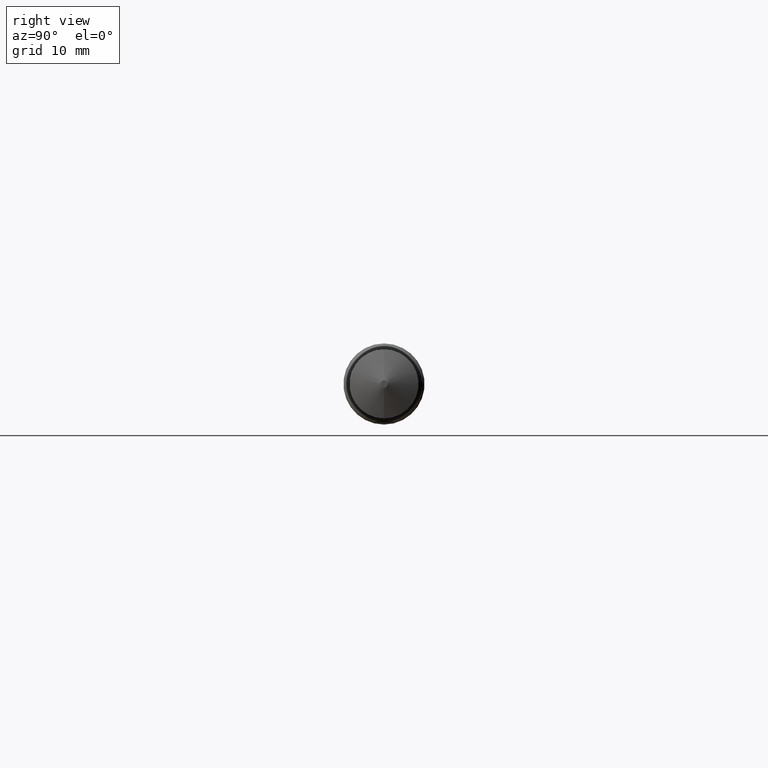
[diagram: clean part render]
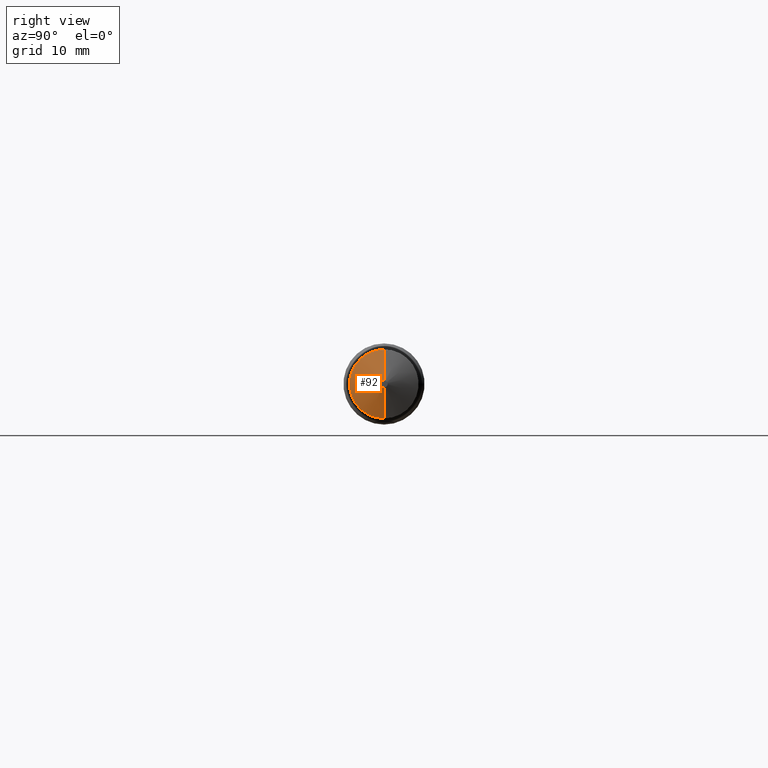
[diagram: same view with one face highlighted and labeled with its STEP entity id]
A machine part, right view. The second image highlights one B-rep face of the part: STEP entity #92.
In plain terms, the highlighted conical surface has half-angle 70 deg.
Its self-contained STEP definition (entity closure, byte-faithful):
#12 = CARTESIAN_POINT ( 'NONE',  ( 3.449341472734085645, 0.000000000000000000, 0.000000000000000000 ) ) ;
#18 = DIRECTION ( 'NONE',  ( 1.000000000000000000, -0.000000000000000000, -0.000000000000000000 ) ) ;
#19 = ORIENTED_EDGE ( 'NONE', *, *, #316, .T. ) ;
#24 = CARTESIAN_POINT ( 'NONE',  ( 3.503937007874015741, 0.000000000000000000, 0.01750000000000043535 ) ) ;
#30 = VERTEX_POINT ( 'NONE', #345 ) ;
#53 = VECTOR ( 'NONE', #62, 39.37007874015748854 ) ;
#62 = DIRECTION ( 'NONE',  ( -0.3420201433256661039, 0.000000000000000000, 0.9396926207859094271 ) ) ;
#68 = DIRECTION ( 'NONE',  ( 0.000000000000000000, 0.000000000000000000, -1.000000000000000000 ) ) ;
#82 = ORIENTED_EDGE ( 'NONE', *, *, #113, .F. ) ;
#87 = CARTESIAN_POINT ( 'NONE',  ( 3.503937007874015741, 1.132798289211307374E-17, -0.01750000000000043535 ) ) ;
#92 = ADVANCED_FACE ( 'NONE', ( #93 ), #376, .T. ) ;
#93 = FACE_OUTER_BOUND ( 'NONE', #246, .T. ) ;
#101 = CARTESIAN_POINT ( 'NONE',  ( 3.449341472734085645, 2.051283388571821633E-17, -0.1675000000000003986 ) ) ;
#107 = CIRCLE ( 'NONE', #377, 0.1675000000000004541 ) ;
#113 = EDGE_CURVE ( 'NONE', #378, #259, #291, .T. ) ;
#137 = DIRECTION ( 'NONE',  ( 0.000000000000000000, 0.000000000000000000, -1.000000000000000000 ) ) ;
#144 = CARTESIAN_POINT ( 'NONE',  ( 3.503937007874015741, 0.000000000000000000, 0.01750000000000043535 ) ) ;
#150 = DIRECTION ( 'NONE',  ( -0.3420201433256661039, 1.150791560227851502E-16, -0.9396926207859094271 ) ) ;
#173 = DIRECTION ( 'NONE',  ( 0.000000000000000000, 0.000000000000000000, 1.000000000000000000 ) ) ;
#200 = CIRCLE ( 'NONE', #338, 0.01750000000000043535 ) ;
#203 = CARTESIAN_POINT ( 'NONE',  ( 3.503937007874015741, 0.000000000000000000, 0.000000000000000000 ) ) ;
#230 = DIRECTION ( 'NONE',  ( -1.000000000000000000, 0.000000000000000000, 0.000000000000000000 ) ) ;
#232 = VECTOR ( 'NONE', #150, 39.37007874015748854 ) ;
#236 = CARTESIAN_POINT ( 'NONE',  ( 3.503937007874015741, 0.000000000000000000, 0.000000000000000000 ) ) ;
#237 = EDGE_CURVE ( 'NONE', #344, #378, #200, .T. ) ;
#246 = EDGE_LOOP ( 'NONE', ( #82, #367, #331, #19 ) ) ;
#259 = VERTEX_POINT ( 'NONE', #101 ) ;
#273 = AXIS2_PLACEMENT_3D ( 'NONE', #203, #230, #173 ) ;
#291 = LINE ( 'NONE', #343, #232 ) ;
#316 = EDGE_CURVE ( 'NONE', #30, #259, #107, .T. ) ;
#317 = LINE ( 'NONE', #24, #53 ) ;
#331 = ORIENTED_EDGE ( 'NONE', *, *, #364, .T. ) ;
#338 = AXIS2_PLACEMENT_3D ( 'NONE', #236, #350, #68 ) ;
#343 = CARTESIAN_POINT ( 'NONE',  ( 3.503937007874015741, 2.143131898507921145E-18, -0.01750000000000043535 ) ) ;
#344 = VERTEX_POINT ( 'NONE', #144 ) ;
#345 = CARTESIAN_POINT ( 'NONE',  ( 3.449341472734085645, 0.000000000000000000, 0.1675000000000003986 ) ) ;
#350 = DIRECTION ( 'NONE',  ( 1.000000000000000000, -0.000000000000000000, -0.000000000000000000 ) ) ;
#364 = EDGE_CURVE ( 'NONE', #344, #30, #317, .T. ) ;
#367 = ORIENTED_EDGE ( 'NONE', *, *, #237, .F. ) ;
#376 = CONICAL_SURFACE ( 'NONE', #273, 0.01750000000000043535, 1.221730476396033493 ) ;
#377 = AXIS2_PLACEMENT_3D ( 'NONE', #12, #18, #137 ) ;
#378 = VERTEX_POINT ( 'NONE', #87 ) ;